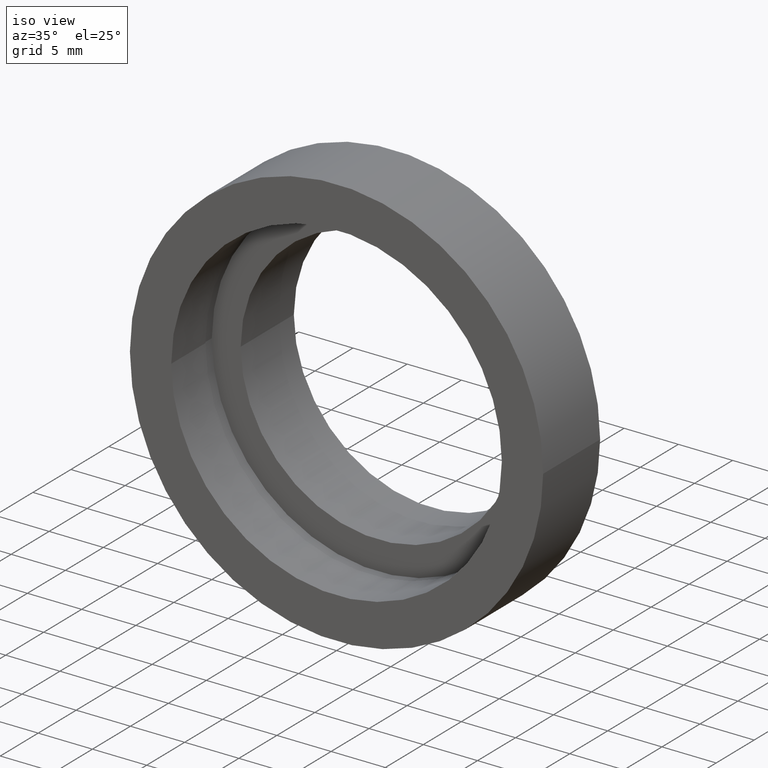
[diagram: clean part render]
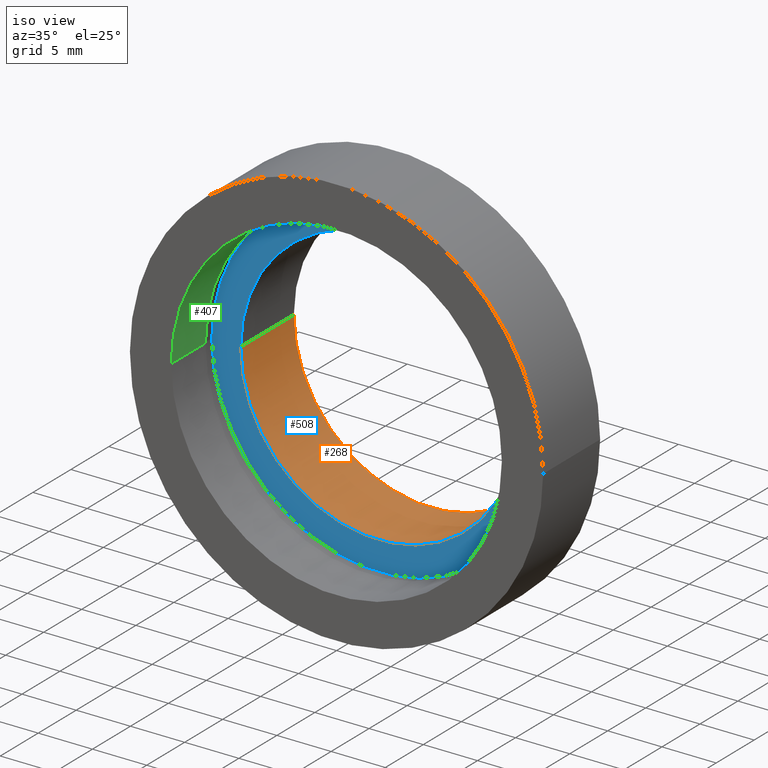
[diagram: same view with three faces highlighted in distinct colors, each labeled with its STEP entity id]
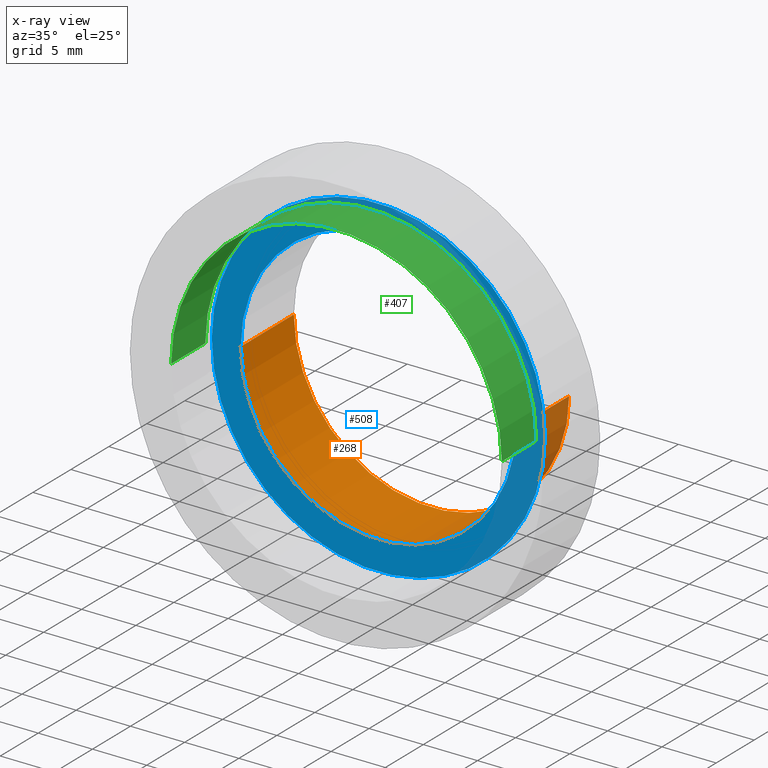
[diagram: x-ray of the same camera — body ghosted, the three highlighted faces saturated]
A machine part, iso view with three faces highlighted in distinct colors.
The next image is the same camera in x-ray (body ghosted, the three faces saturated) — at least one of them is partly hidden behind the body in this view.
Their STEP definitions:

[orange] entity #268 — the highlighted cylindrical surface (partial cylindrical patch) has radius 12.69 mm, axis along (-0, 1, -0).
#1 = DIRECTION ( 'NONE',  ( -1.224646799147351000E-016, 1.000000000000000000, -0.0000000000000000000 ) ) ;
#8 = CIRCLE ( 'NONE', #232, 12.68999999999999600 ) ;
#27 = LINE ( 'NONE', #118, #107 ) ;
#29 = ORIENTED_EDGE ( 'NONE', *, *, #463, .T. ) ;
#42 = CARTESIAN_POINT ( 'NONE',  ( -12.69000000000000000, 12.49999999999999500, 0.0000000000000000000 ) ) ;
#57 = ORIENTED_EDGE ( 'NONE', *, *, #597, .T. ) ;
#61 = EDGE_CURVE ( 'NONE', #255, #68, #8, .T. ) ;
#68 = VERTEX_POINT ( 'NONE', #607 ) ;
#80 = ORIENTED_EDGE ( 'NONE', *, *, #61, .F. ) ;
#97 = EDGE_LOOP ( 'NONE', ( #80, #29, #57, #134 ) ) ;
#107 = VECTOR ( 'NONE', #359, 1000.000000000000000 ) ;
#118 = CARTESIAN_POINT ( 'NONE',  ( -12.68999999999999800, 16.88601823708207700, 0.0000000000000000000 ) ) ;
#124 = VERTEX_POINT ( 'NONE', #563 ) ;
#125 = LINE ( 'NONE', #266, #230 ) ;
#134 = ORIENTED_EDGE ( 'NONE', *, *, #430, .F. ) ;
#148 = CARTESIAN_POINT ( 'NONE',  ( 5.371323195044474300E-016, 12.49999999999999600, 0.0000000000000000000 ) ) ;
#151 = CIRCLE ( 'NONE', #522, 12.69000000000000000 ) ;
#180 = DIRECTION ( 'NONE',  ( -1.224646799147351000E-016, 1.000000000000000000, -0.0000000000000000000 ) ) ;
#200 = CYLINDRICAL_SURFACE ( 'NONE', #247, 12.68999999999999800 ) ;
#230 = VECTOR ( 'NONE', #590, 1000.000000000000000 ) ;
#232 = AXIS2_PLACEMENT_3D ( 'NONE', #464, #180, #614 ) ;
#247 = AXIS2_PLACEMENT_3D ( 'NONE', #429, #1, #341 ) ;
#255 = VERTEX_POINT ( 'NONE', #338 ) ;
#266 = CARTESIAN_POINT ( 'NONE',  ( 12.68999999999999800, 16.88601823708207700, 1.554076788117991100E-015 ) ) ;
#268 = ADVANCED_FACE ( 'NONE', ( #604 ), #200, .F. ) ;
#292 = DIRECTION ( 'NONE',  ( -1.224646799147351000E-016, 1.000000000000000000, -0.0000000000000000000 ) ) ;
#334 = DIRECTION ( 'NONE',  ( -1.000000000000000000, -1.367000375080226200E-016, 0.0000000000000000000 ) ) ;
#338 = CARTESIAN_POINT ( 'NONE',  ( 12.68999999999999800, 5.499999999999998200, 1.554076788117991100E-015 ) ) ;
#341 = DIRECTION ( 'NONE',  ( -1.000000000000000000, 0.0000000000000000000, 0.0000000000000000000 ) ) ;
#359 = DIRECTION ( 'NONE',  ( -1.224646799147351000E-016, 1.000000000000000000, -0.0000000000000000000 ) ) ;
#429 = CARTESIAN_POINT ( 'NONE',  ( 0.0000000000000000000, 16.88601823708207700, 0.0000000000000000000 ) ) ;
#430 = EDGE_CURVE ( 'NONE', #68, #619, #27, .T. ) ;
#463 = EDGE_CURVE ( 'NONE', #255, #124, #125, .T. ) ;
#464 = CARTESIAN_POINT ( 'NONE',  ( 1.394385078907593200E-015, 5.499999999999996400, 0.0000000000000000000 ) ) ;
#522 = AXIS2_PLACEMENT_3D ( 'NONE', #148, #292, #334 ) ;
#563 = CARTESIAN_POINT ( 'NONE',  ( 12.69000000000000000, 12.49999999999999800, 1.554076788117991100E-015 ) ) ;
#590 = DIRECTION ( 'NONE',  ( -1.224646799147351000E-016, 1.000000000000000000, -0.0000000000000000000 ) ) ;
#597 = EDGE_CURVE ( 'NONE', #124, #619, #151, .T. ) ;
#604 = FACE_OUTER_BOUND ( 'NONE', #97, .T. ) ;
#607 = CARTESIAN_POINT ( 'NONE',  ( -12.68999999999999400, 5.499999999999994700, 0.0000000000000000000 ) ) ;
#614 = DIRECTION ( 'NONE',  ( -1.000000000000000000, -1.367000375080226700E-016, 0.0000000000000000000 ) ) ;
#619 = VERTEX_POINT ( 'NONE', #42 ) ;

[blue] entity #508 — the highlighted planar face has unit normal (-0, 1, 0).
#3 = VERTEX_POINT ( 'NONE', #363 ) ;
#4 = ORIENTED_EDGE ( 'NONE', *, *, #623, .F. ) ;
#8 = CIRCLE ( 'NONE', #232, 12.68999999999999600 ) ;
#9 = DIRECTION ( 'NONE',  ( -1.000000000000000000, -1.130113013665672600E-016, 0.0000000000000000000 ) ) ;
#12 = CIRCLE ( 'NONE', #345, 15.34999999999999800 ) ;
#49 = DIRECTION ( 'NONE',  ( -1.000000000000000000, -1.130113013665672600E-016, 0.0000000000000000000 ) ) ;
#56 = CIRCLE ( 'NONE', #594, 12.68999999999999600 ) ;
#61 = EDGE_CURVE ( 'NONE', #255, #68, #8, .T. ) ;
#68 = VERTEX_POINT ( 'NONE', #607 ) ;
#106 = CARTESIAN_POINT ( 'NONE',  ( 1.394385078907593200E-015, 5.499999999999996400, 0.0000000000000000000 ) ) ;
#145 = DIRECTION ( 'NONE',  ( -1.224646799147351000E-016, 1.000000000000000000, -0.0000000000000000000 ) ) ;
#175 = FACE_BOUND ( 'NONE', #388, .T. ) ;
#176 = DIRECTION ( 'NONE',  ( -1.224646799147351000E-016, 1.000000000000000000, 0.0000000000000000000 ) ) ;
#180 = DIRECTION ( 'NONE',  ( -1.224646799147351000E-016, 1.000000000000000000, -0.0000000000000000000 ) ) ;
#191 = AXIS2_PLACEMENT_3D ( 'NONE', #461, #176, #507 ) ;
#212 = ORIENTED_EDGE ( 'NONE', *, *, #327, .F. ) ;
#231 = ORIENTED_EDGE ( 'NONE', *, *, #354, .T. ) ;
#232 = AXIS2_PLACEMENT_3D ( 'NONE', #464, #180, #614 ) ;
#255 = VERTEX_POINT ( 'NONE', #338 ) ;
#259 = ORIENTED_EDGE ( 'NONE', *, *, #61, .T. ) ;
#298 = FACE_OUTER_BOUND ( 'NONE', #524, .T. ) ;
#327 = EDGE_CURVE ( 'NONE', #480, #3, #12, .T. ) ;
#338 = CARTESIAN_POINT ( 'NONE',  ( 12.68999999999999800, 5.499999999999998200, 1.554076788117991100E-015 ) ) ;
#344 = DIRECTION ( 'NONE',  ( -1.224646799147351000E-016, 1.000000000000000000, -0.0000000000000000000 ) ) ;
#345 = AXIS2_PLACEMENT_3D ( 'NONE', #106, #344, #9 ) ;
#354 = EDGE_CURVE ( 'NONE', #68, #255, #56, .T. ) ;
#362 = PLANE ( 'NONE',  #191 ) ;
#363 = CARTESIAN_POINT ( 'NONE',  ( -15.34999999999999600, 5.499999999999994700, 0.0000000000000000000 ) ) ;
#388 = EDGE_LOOP ( 'NONE', ( #231, #259 ) ) ;
#393 = DIRECTION ( 'NONE',  ( -1.224646799147351000E-016, 1.000000000000000000, -0.0000000000000000000 ) ) ;
#419 = CIRCLE ( 'NONE', #584, 15.34999999999999800 ) ;
#436 = DIRECTION ( 'NONE',  ( -1.000000000000000000, -1.367000375080226700E-016, 0.0000000000000000000 ) ) ;
#444 = CARTESIAN_POINT ( 'NONE',  ( 1.394385078907593200E-015, 5.499999999999996400, 0.0000000000000000000 ) ) ;
#461 = CARTESIAN_POINT ( 'NONE',  ( 12.68999999999999800, 5.499999999999999100, 0.0000000000000000000 ) ) ;
#464 = CARTESIAN_POINT ( 'NONE',  ( 1.394385078907593200E-015, 5.499999999999996400, 0.0000000000000000000 ) ) ;
#480 = VERTEX_POINT ( 'NONE', #592 ) ;
#481 = CARTESIAN_POINT ( 'NONE',  ( 1.394385078907593200E-015, 5.499999999999996400, 0.0000000000000000000 ) ) ;
#507 = DIRECTION ( 'NONE',  ( -1.000000000000000000, -1.224646799147351000E-016, 0.0000000000000000000 ) ) ;
#508 = ADVANCED_FACE ( 'NONE', ( #298, #175 ), #362, .F. ) ;
#524 = EDGE_LOOP ( 'NONE', ( #4, #212 ) ) ;
#584 = AXIS2_PLACEMENT_3D ( 'NONE', #481, #145, #49 ) ;
#592 = CARTESIAN_POINT ( 'NONE',  ( 15.35000000000000000, 5.499999999999998200, 1.879832836691187100E-015 ) ) ;
#594 = AXIS2_PLACEMENT_3D ( 'NONE', #444, #393, #436 ) ;
#607 = CARTESIAN_POINT ( 'NONE',  ( -12.68999999999999400, 5.499999999999994700, 0.0000000000000000000 ) ) ;
#614 = DIRECTION ( 'NONE',  ( -1.000000000000000000, -1.367000375080226700E-016, 0.0000000000000000000 ) ) ;
#623 = EDGE_CURVE ( 'NONE', #3, #480, #419, .T. ) ;

[green] entity #407 — the highlighted cylindrical surface (partial cylindrical patch) has radius 15.24 mm, axis along (-0, 1, -0).
#22 = CIRCLE ( 'NONE', #351, 15.24000000000000000 ) ;
#37 = LINE ( 'NONE', #116, #48 ) ;
#48 = VECTOR ( 'NONE', #218, 1000.000000000000000 ) ;
#65 = CARTESIAN_POINT ( 'NONE',  ( -15.23999999999999800, -5.335808673854176800E-015, 0.0000000000000000000 ) ) ;
#70 = EDGE_CURVE ( 'NONE', #474, #518, #22, .T. ) ;
#74 = EDGE_CURVE ( 'NONE', #518, #431, #465, .T. ) ;
#99 = DIRECTION ( 'NONE',  ( -1.224646799147351000E-016, 1.000000000000000000, -0.0000000000000000000 ) ) ;
#116 = CARTESIAN_POINT ( 'NONE',  ( -15.23999999999999800, 16.88601823708207300, 0.0000000000000000000 ) ) ;
#131 = DIRECTION ( 'NONE',  ( -1.000000000000000000, -1.224646799147350700E-016, 0.0000000000000000000 ) ) ;
#183 = DIRECTION ( 'NONE',  ( -1.224646799147351000E-016, 1.000000000000000000, -0.0000000000000000000 ) ) ;
#187 = CARTESIAN_POINT ( 'NONE',  ( 15.23999999999999800, 16.88601823708208000, 1.866361721900565800E-015 ) ) ;
#190 = VERTEX_POINT ( 'NONE', #293 ) ;
#199 = ORIENTED_EDGE ( 'NONE', *, *, #559, .T. ) ;
#206 = FACE_OUTER_BOUND ( 'NONE', #305, .T. ) ;
#218 = DIRECTION ( 'NONE',  ( -1.224646799147351000E-016, 1.000000000000000000, -0.0000000000000000000 ) ) ;
#236 = ORIENTED_EDGE ( 'NONE', *, *, #74, .F. ) ;
#257 = CARTESIAN_POINT ( 'NONE',  ( 0.0000000000000000000, 16.88601823708207700, 0.0000000000000000000 ) ) ;
#265 = CARTESIAN_POINT ( 'NONE',  ( 15.23999999999999800, 4.499999999999999100, 1.866361721900565400E-015 ) ) ;
#293 = CARTESIAN_POINT ( 'NONE',  ( -15.23999999999999500, 4.499999999999995600, 0.0000000000000000000 ) ) ;
#301 = AXIS2_PLACEMENT_3D ( 'NONE', #503, #99, #533 ) ;
#305 = EDGE_LOOP ( 'NONE', ( #236, #349, #389, #199 ) ) ;
#323 = CARTESIAN_POINT ( 'NONE',  ( 15.24000000000000400, -1.603085230053050900E-015, 1.866361721900566200E-015 ) ) ;
#349 = ORIENTED_EDGE ( 'NONE', *, *, #70, .F. ) ;
#351 = AXIS2_PLACEMENT_3D ( 'NONE', #467, #183, #131 ) ;
#382 = CYLINDRICAL_SURFACE ( 'NONE', #548, 15.23999999999999800 ) ;
#389 = ORIENTED_EDGE ( 'NONE', *, *, #504, .T. ) ;
#392 = CIRCLE ( 'NONE', #301, 15.23999999999999700 ) ;
#407 = ADVANCED_FACE ( 'NONE', ( #206 ), #382, .F. ) ;
#408 = DIRECTION ( 'NONE',  ( -1.000000000000000000, -2.276539994720219300E-016, 0.0000000000000000000 ) ) ;
#431 = VERTEX_POINT ( 'NONE', #265 ) ;
#451 = VECTOR ( 'NONE', #519, 1000.000000000000000 ) ;
#465 = LINE ( 'NONE', #187, #451 ) ;
#467 = CARTESIAN_POINT ( 'NONE',  ( 2.067940818438636500E-015, -3.469446951953614200E-015, 0.0000000000000000000 ) ) ;
#474 = VERTEX_POINT ( 'NONE', #65 ) ;
#503 = CARTESIAN_POINT ( 'NONE',  ( 1.516849758822328300E-015, 4.499999999999997300, 0.0000000000000000000 ) ) ;
#504 = EDGE_CURVE ( 'NONE', #474, #190, #37, .T. ) ;
#518 = VERTEX_POINT ( 'NONE', #323 ) ;
#519 = DIRECTION ( 'NONE',  ( -1.224646799147351000E-016, 1.000000000000000000, -0.0000000000000000000 ) ) ;
#533 = DIRECTION ( 'NONE',  ( -1.000000000000000000, -1.138269997360109900E-016, 0.0000000000000000000 ) ) ;
#548 = AXIS2_PLACEMENT_3D ( 'NONE', #257, #583, #408 ) ;
#559 = EDGE_CURVE ( 'NONE', #190, #431, #392, .T. ) ;
#583 = DIRECTION ( 'NONE',  ( -1.224646799147351000E-016, 1.000000000000000000, -0.0000000000000000000 ) ) ;